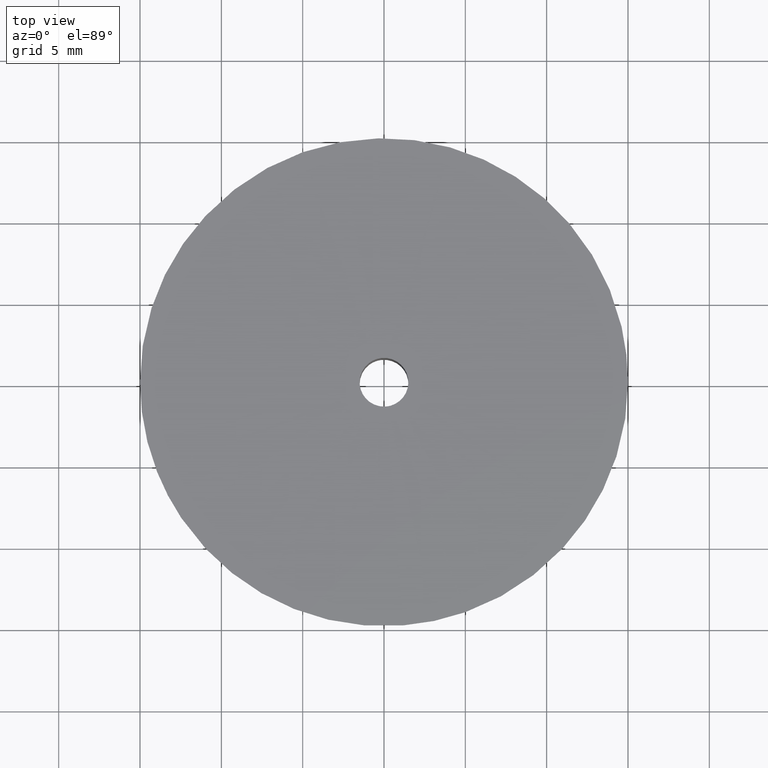
[diagram: clean part render]
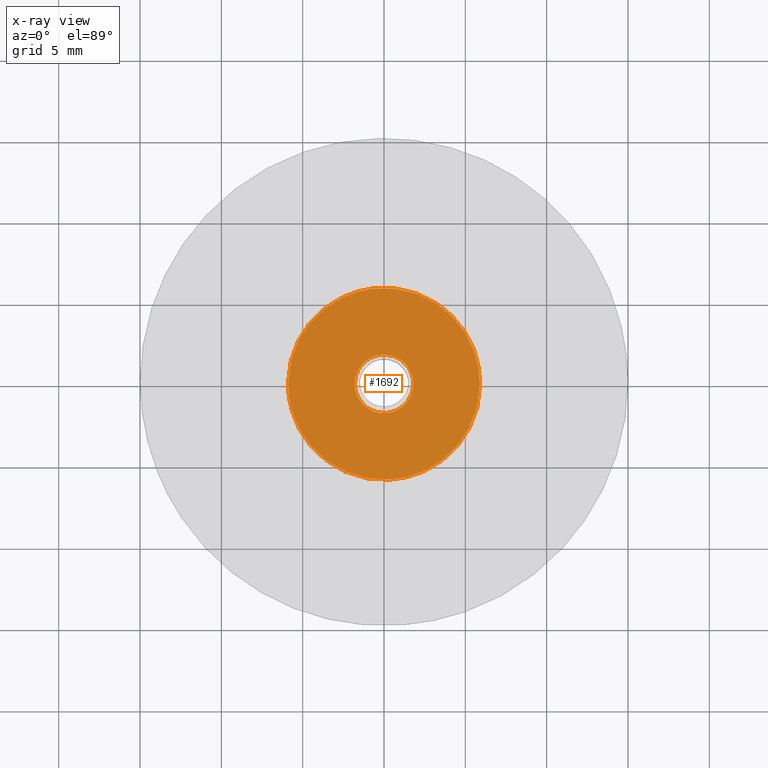
[diagram: x-ray — body ghosted, one internal face saturated and labeled with its STEP entity id]
A machine part, top view, then the same camera in x-ray: the body is ghosted and one INTERNAL B-rep face — a face not visible from any outside direction — is saturated and labeled: STEP entity #1692.
In plain terms, the highlighted face is a freeform B-spline surface patch.
Its self-contained STEP definition (entity closure, byte-faithful):
#1130=CARTESIAN_POINT('',(-0.212461622440302,1.787417147447689,8.799999999999901));
#1131=VERTEX_POINT('',#1130);
#1137=CARTESIAN_POINT('',(1.800000000000000,0.0,8.799999999999900));
#1138=VERTEX_POINT('',#1137);
#1139=CARTESIAN_POINT('',(-0.212461622440302,1.787417147447688,8.799999999999901));
#1140=CARTESIAN_POINT('',(-0.106603415432190,1.800000000000000,8.799999999999898));
#1141=CARTESIAN_POINT('',(0.0,1.800000000000000,8.799999999999900));
#1142=CARTESIAN_POINT('',(1.800000000000001,1.800000000000001,8.799999999999900));
#1143=CARTESIAN_POINT('',(1.800000000000000,0.0,8.799999999999900));
#1151=(BOUNDED_CURVE()B_SPLINE_CURVE(2,(#1139,#1140,#1141,#1142,#1143),.UNSPECIFIED.,.F.,.U.)B_SPLINE_CURVE_WITH_KNOTS((3,2,3),(0.229562473504650,0.250000000000000,0.500000000000000),.UNSPECIFIED.)CURVE()GEOMETRIC_REPRESENTATION_ITEM()RATIONAL_B_SPLINE_CURVE((0.956026754166337,0.976055948320767,1.0,0.707106781186547,1.0))REPRESENTATION_ITEM(''));
#1152=EDGE_CURVE('',#1131,#1138,#1151,.T.);
#1154=CARTESIAN_POINT('',(0.109887371177959,-1.796642637158430,8.799999999999901));
#1155=VERTEX_POINT('',#1154);
#1156=CARTESIAN_POINT('',(1.800000000000000,0.0,8.799999999999900));
#1157=CARTESIAN_POINT('',(1.800000000000000,-1.693270920401510,8.799999999999900));
#1158=CARTESIAN_POINT('',(0.109887371177959,-1.796642637158429,8.799999999999901));
#1166=(BOUNDED_CURVE()B_SPLINE_CURVE(2,(#1156,#1157,#1158),.UNSPECIFIED.,.F.,.U.)B_SPLINE_CURVE_WITH_KNOTS((3,3),(0.500000000000000,0.739332962239045),.UNSPECIFIED.)CURVE()GEOMETRIC_REPRESENTATION_ITEM()RATIONAL_B_SPLINE_CURVE((1.0,0.719603993286591,0.976072041666937))REPRESENTATION_ITEM(''));
#1167=EDGE_CURVE('',#1138,#1155,#1166,.T.);
#1241=CARTESIAN_POINT('',(-1.800000000000000,0.0,8.799999999999900));
#1242=VERTEX_POINT('',#1241);
#1243=CARTESIAN_POINT('',(0.109887371177959,-1.796642637158430,8.799999999999901));
#1244=CARTESIAN_POINT('',(0.054994973952719,-1.800000000000000,8.799999999999900));
#1245=CARTESIAN_POINT('',(0.0,-1.800000000000000,8.799999999999900));
#1246=CARTESIAN_POINT('',(-1.800000000000001,-1.800000000000001,8.799999999999900));
#1247=CARTESIAN_POINT('',(-1.800000000000000,0.0,8.799999999999900));
#1255=(BOUNDED_CURVE()B_SPLINE_CURVE(2,(#1243,#1244,#1245,#1246,#1247),.UNSPECIFIED.,.F.,.U.)B_SPLINE_CURVE_WITH_KNOTS((3,2,3),(0.739332962239046,0.750000000000000,1.0),.UNSPECIFIED.)CURVE()GEOMETRIC_REPRESENTATION_ITEM()RATIONAL_B_SPLINE_CURVE((0.976072041666938,0.987502787899958,1.0,0.707106781186547,1.0))REPRESENTATION_ITEM(''));
#1256=EDGE_CURVE('',#1155,#1242,#1255,.T.);
#1258=CARTESIAN_POINT('',(-1.800000000000000,0.0,8.799999999999900));
#1259=CARTESIAN_POINT('',(-1.800000000000001,1.598714146607731,8.799999999999900));
#1260=CARTESIAN_POINT('',(-0.212461622440302,1.787417147447688,8.799999999999901));
#1268=(BOUNDED_CURVE()B_SPLINE_CURVE(2,(#1258,#1259,#1260),.UNSPECIFIED.,.F.,.U.)B_SPLINE_CURVE_WITH_KNOTS((3,3),(0.0,0.229562473504650),.UNSPECIFIED.)CURVE()GEOMETRIC_REPRESENTATION_ITEM()RATIONAL_B_SPLINE_CURVE((1.0,0.731050832865780,0.956026754166337))REPRESENTATION_ITEM(''));
#1269=EDGE_CURVE('',#1242,#1131,#1268,.T.);
#1297=CARTESIAN_POINT('',(-0.696391749451099,5.858757422115222,8.799999999999688));
#1298=VERTEX_POINT('',#1297);
#1299=CARTESIAN_POINT('',(5.900000000000000,0.0,8.799999999999900));
#1300=VERTEX_POINT('',#1299);
#1301=CARTESIAN_POINT('',(-0.696391749451099,5.858757422115223,8.799999999999688));
#1302=CARTESIAN_POINT('',(-0.349417134334040,5.900000000000000,8.799999999999901));
#1303=CARTESIAN_POINT('',(0.0,5.900000000000000,8.799999999999900));
#1304=CARTESIAN_POINT('',(5.900000000000000,5.900000000000000,8.799999999999900));
#1305=CARTESIAN_POINT('',(5.900000000000000,0.0,8.799999999999900));
#1313=(BOUNDED_CURVE()B_SPLINE_CURVE(2,(#1301,#1302,#1303,#1304,#1305),.UNSPECIFIED.,.F.,.U.)B_SPLINE_CURVE_WITH_KNOTS((3,2,3),(0.229562768757909,0.250000000000000,0.500000000000000),.UNSPECIFIED.)CURVE()GEOMETRIC_REPRESENTATION_ITEM()RATIONAL_B_SPLINE_CURVE((0.956027332875623,0.976056294231476,1.0,0.707106781186548,1.0))REPRESENTATION_ITEM(''));
#1314=EDGE_CURVE('',#1298,#1300,#1313,.T.);
#1355=CARTESIAN_POINT('',(0.360185819349895,-5.888995345178913,8.799999999999894));
#1356=VERTEX_POINT('',#1355);
#1362=CARTESIAN_POINT('',(5.900000000000000,0.0,8.799999999999900));
#1363=CARTESIAN_POINT('',(5.900000000000000,-5.550166859651647,8.799999999999898));
#1364=CARTESIAN_POINT('',(0.360185819349895,-5.888995345178913,8.799999999999894));
#1372=(BOUNDED_CURVE()B_SPLINE_CURVE(2,(#1362,#1363,#1364),.UNSPECIFIED.,.F.,.U.)B_SPLINE_CURVE_WITH_KNOTS((3,3),(0.500000000000000,0.739332995286698),.UNSPECIFIED.)CURVE()GEOMETRIC_REPRESENTATION_ITEM()RATIONAL_B_SPLINE_CURVE((1.0,0.719603954568856,0.976072112494359))REPRESENTATION_ITEM(''));
#1373=EDGE_CURVE('',#1300,#1356,#1372,.T.);
#1400=CARTESIAN_POINT('',(-5.900000000000000,0.0,8.799999999999900));
#1401=VERTEX_POINT('',#1400);
#1402=CARTESIAN_POINT('',(-5.900000000000000,0.0,8.799999999999900));
#1403=CARTESIAN_POINT('',(-5.900000000000000,5.240238922044519,8.799999999999900));
#1404=CARTESIAN_POINT('',(-0.696391749451099,5.858757422115223,8.799999999999688));
#1412=(BOUNDED_CURVE()B_SPLINE_CURVE(2,(#1402,#1403,#1404),.UNSPECIFIED.,.F.,.U.)B_SPLINE_CURVE_WITH_KNOTS((3,3),(0.0,0.229562768757909),.UNSPECIFIED.)CURVE()GEOMETRIC_REPRESENTATION_ITEM()RATIONAL_B_SPLINE_CURVE((1.0,0.731050486955072,0.956027332875623))REPRESENTATION_ITEM(''));
#1413=EDGE_CURVE('',#1401,#1298,#1412,.T.);
#1415=CARTESIAN_POINT('',(0.360185819349895,-5.888995345178914,8.799999999999894));
#1416=CARTESIAN_POINT('',(0.180260737974781,-5.900000000000000,8.799999999999900));
#1417=CARTESIAN_POINT('',(0.0,-5.900000000000000,8.799999999999900));
#1418=CARTESIAN_POINT('',(-5.900000000000000,-5.900000000000000,8.799999999999900));
#1419=CARTESIAN_POINT('',(-5.900000000000000,0.0,8.799999999999900));
#1427=(BOUNDED_CURVE()B_SPLINE_CURVE(2,(#1415,#1416,#1417,#1418,#1419),.UNSPECIFIED.,.F.,.U.)B_SPLINE_CURVE_WITH_KNOTS((3,2,3),(0.739332995286699,0.750000000000000,1.0),.UNSPECIFIED.)CURVE()GEOMETRIC_REPRESENTATION_ITEM()RATIONAL_B_SPLINE_CURVE((0.976072112494360,0.987502826617692,1.0,0.707106781186548,1.0))REPRESENTATION_ITEM(''));
#1428=EDGE_CURVE('',#1356,#1401,#1427,.T.);
#1675=CARTESIAN_POINT('',(-6.489410087899267,-6.489266597913432,8.799999999999900));
#1676=CARTESIAN_POINT('',(6.489410298899711,-6.489266597913432,8.799999999999900));
#1677=CARTESIAN_POINT('',(-6.489410087899267,6.489302678989104,8.799999999999900));
#1678=CARTESIAN_POINT('',(6.489410298899711,6.489302678989104,8.799999999999900));
#1679=B_SPLINE_SURFACE_WITH_KNOTS('',1,1,((#1675,#1677),(#1676,#1678)),.UNSPECIFIED.,.F.,.F.,.U.,(2,2),(2,2),(0.0,12.978820386798979),(0.0,12.978569276902540),.UNSPECIFIED.);
#1680=ORIENTED_EDGE('',*,*,#1413,.T.);
#1681=ORIENTED_EDGE('',*,*,#1314,.T.);
#1682=ORIENTED_EDGE('',*,*,#1373,.T.);
#1683=ORIENTED_EDGE('',*,*,#1428,.T.);
#1684=EDGE_LOOP('',(#1680,#1681,#1682,#1683));
#1685=FACE_OUTER_BOUND('',#1684,.T.);
#1686=ORIENTED_EDGE('',*,*,#1167,.F.);
#1687=ORIENTED_EDGE('',*,*,#1152,.F.);
#1688=ORIENTED_EDGE('',*,*,#1269,.F.);
#1689=ORIENTED_EDGE('',*,*,#1256,.F.);
#1690=EDGE_LOOP('',(#1686,#1687,#1688,#1689));
#1691=FACE_BOUND('',#1690,.T.);
#1692=ADVANCED_FACE('',(#1685,#1691),#1679,.F.);